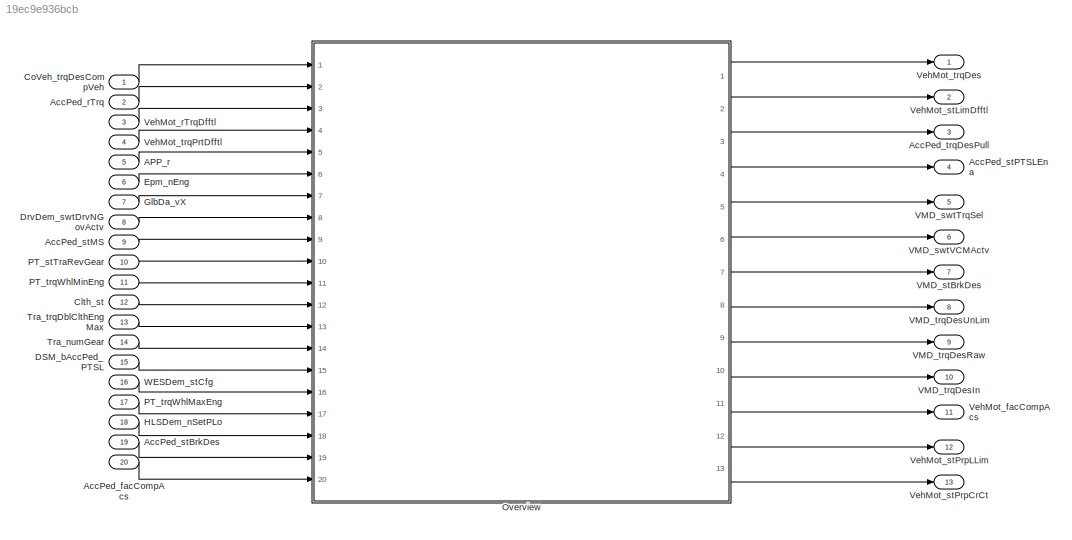
MODEL slx_19ec9e936bcb
KIND model
CONFIG AbsTol = auto
CONFIG EnableMultiTasking = off
CONFIG FixedStep = auto
CONFIG MaxStep = auto
CONFIG MinStep = auto
CONFIG RelTol = 1e-3
CONFIG SampleTimeConstraint = Unconstrained
CONFIG Solver = VariableStepAuto
CONFIG SolverName = VariableStepAuto
CONFIG StartTime = 0.0
CONFIG StopTime = 10.0
BLOCK [Inport] APP_r
  IconDisplay = Port number
  Port = 5
BLOCK [Inport] AccPed_facCompAcs
  IconDisplay = Port number
  Port = 20
BLOCK [Inport] AccPed_rTrq
  IconDisplay = Port number
  Port = 2
BLOCK [Inport] AccPed_stBrkDes
  IconDisplay = Port number
  Port = 19
BLOCK [Inport] AccPed_stMS
  IconDisplay = Port number
  Port = 9
BLOCK [Outport] AccPed_stPTSLEna
  IconDisplay = Port number
  Port = 4
BLOCK [Outport] AccPed_trqDesPull
  IconDisplay = Port number
  Port = 3
BLOCK [Inport] Clth_st
  IconDisplay = Port number
  Port = 12
BLOCK [Inport] CoVeh_trqDesCompVeh
  IconDisplay = Port number
BLOCK [Inport] DSM_bAccPed_PTSL
  IconDisplay = Port number
  Port = 15
BLOCK [Inport] DrvDem_swtDrvNGovActv
  IconDisplay = Port number
  Port = 8
BLOCK [Inport] Epm_nEng
  IconDisplay = Port number
  Port = 6
BLOCK [Inport] GlbDa_vX
  IconDisplay = Port number
  Port = 7
BLOCK [Inport] HLSDem_nSetPLo
  IconDisplay = Port number
  Port = 18
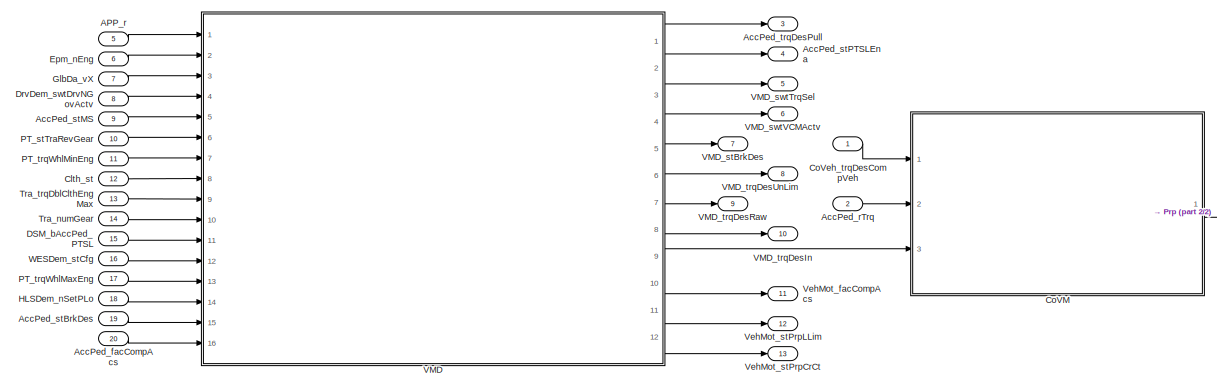
[diagram: Overview - part 1/2, center side, full height]
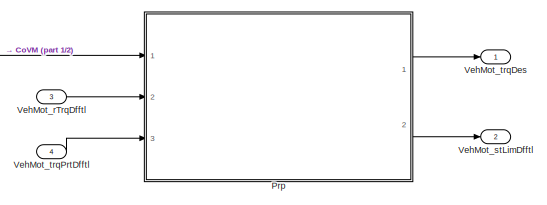
[diagram: Overview - part 2/2, bottom right region]
BLOCK [SubSystem] Overview
  Ports = [20, 13]
  RequestExecContextInheritance = off
BLOCK [Inport] Overview/APP_r
  IconDisplay = Port number
  Port = 5
BLOCK [Inport] Overview/AccPed_facCompAcs
  IconDisplay = Port number
  Port = 20
BLOCK [Inport] Overview/AccPed_rTrq
  IconDisplay = Port number
  Port = 2
BLOCK [Inport] Overview/AccPed_stBrkDes
  IconDisplay = Port number
  Port = 19
BLOCK [Inport] Overview/AccPed_stMS
  IconDisplay = Port number
  Port = 9
BLOCK [Outport] Overview/AccPed_stPTSLEna
  IconDisplay = Port number
  Port = 4
BLOCK [Outport] Overview/AccPed_trqDesPull
  IconDisplay = Port number
  Port = 3
BLOCK [Inport] Overview/Clth_st
  IconDisplay = Port number
  Port = 12
BLOCK [ModelReference] Overview/CoVM
  ModelNameDialog = CoVM
  ModelReferenceVersion = 1.2
  Ports = [3, 1]
BLOCK [Inport] Overview/CoVeh_trqDesCompVeh
  IconDisplay = Port number
BLOCK [Inport] Overview/DSM_bAccPed_PTSL
  IconDisplay = Port number
  Port = 15
BLOCK [Inport] Overview/DrvDem_swtDrvNGovActv
  IconDisplay = Port number
  Port = 8
BLOCK [Inport] Overview/Epm_nEng
  IconDisplay = Port number
  Port = 6
BLOCK [Inport] Overview/GlbDa_vX
  IconDisplay = Port number
  Port = 7
BLOCK [Inport] Overview/HLSDem_nSetPLo
  IconDisplay = Port number
  Port = 18
BLOCK [Inport] Overview/PT_stTraRevGear
  IconDisplay = Port number
  Port = 10
BLOCK [Inport] Overview/PT_trqWhlMaxEng
  IconDisplay = Port number
  Port = 17
BLOCK [Inport] Overview/PT_trqWhlMinEng
  IconDisplay = Port number
  Port = 11
BLOCK [ModelReference] Overview/Prp
  ModelNameDialog = Prp
  ModelReferenceVersion = 1.2
  Ports = [3, 2]
BLOCK [Inport] Overview/Tra_numGear
  IconDisplay = Port number
  Port = 14
BLOCK [Inport] Overview/Tra_trqDblClthEngMax
  IconDisplay = Port number
  Port = 13
BLOCK [ModelReference] Overview/VMD
  ModelNameDialog = VMD
  ModelReferenceVersion = 1.5
  Ports = [16, 12]
BLOCK [Outport] Overview/VMD_stBrkDes
  IconDisplay = Port number
  Port = 7
BLOCK [Outport] Overview/VMD_swtTrqSel
  IconDisplay = Port number
  Port = 5
BLOCK [Outport] Overview/VMD_swtVCMActv
  IconDisplay = Port number
  Port = 6
BLOCK [Outport] Overview/VMD_trqDesIn
  IconDisplay = Port number
  Port = 10
BLOCK [Outport] Overview/VMD_trqDesRaw
  IconDisplay = Port number
  Port = 9
BLOCK [Outport] Overview/VMD_trqDesUnLim
  IconDisplay = Port number
  Port = 8
BLOCK [Outport] Overview/VehMot_facCompAcs
  IconDisplay = Port number
  Port = 11
BLOCK [Inport] Overview/VehMot_rTrqDfftl
  IconDisplay = Port number
  Port = 3
BLOCK [Outport] Overview/VehMot_stLimDfftl
  IconDisplay = Port number
  Port = 2
BLOCK [Outport] Overview/VehMot_stPrpCrCt
  IconDisplay = Port number
  Port = 13
BLOCK [Outport] Overview/VehMot_stPrpLLim
  IconDisplay = Port number
  Port = 12
BLOCK [Outport] Overview/VehMot_trqDes
  IconDisplay = Port number
BLOCK [Inport] Overview/VehMot_trqPrtDfftl
  IconDisplay = Port number
  Port = 4
BLOCK [Inport] Overview/WESDem_stCfg
  IconDisplay = Port number
  Port = 16
BLOCK [Inport] PT_stTraRevGear
  IconDisplay = Port number
  Port = 10
BLOCK [Inport] PT_trqWhlMaxEng
  IconDisplay = Port number
  Port = 17
BLOCK [Inport] PT_trqWhlMinEng
  IconDisplay = Port number
  Port = 11
BLOCK [Inport] Tra_numGear
  IconDisplay = Port number
  Port = 14
BLOCK [Inport] Tra_trqDblClthEngMax
  IconDisplay = Port number
  Port = 13
BLOCK [Outport] VMD_stBrkDes
  IconDisplay = Port number
  Port = 7
BLOCK [Outport] VMD_swtTrqSel
  IconDisplay = Port number
  Port = 5
BLOCK [Outport] VMD_swtVCMActv
  IconDisplay = Port number
  Port = 6
BLOCK [Outport] VMD_trqDesIn
  IconDisplay = Port number
  Port = 10
BLOCK [Outport] VMD_trqDesRaw
  IconDisplay = Port number
  Port = 9
BLOCK [Outport] VMD_trqDesUnLim
  IconDisplay = Port number
  Port = 8
BLOCK [Outport] VehMot_facCompAcs
  IconDisplay = Port number
  Port = 11
BLOCK [Inport] VehMot_rTrqDfftl
  IconDisplay = Port number
  Port = 3
BLOCK [Outport] VehMot_stLimDfftl
  IconDisplay = Port number
  Port = 2
BLOCK [Outport] VehMot_stPrpCrCt
  IconDisplay = Port number
  Port = 13
BLOCK [Outport] VehMot_stPrpLLim
  IconDisplay = Port number
  Port = 12
BLOCK [Outport] VehMot_trqDes
  IconDisplay = Port number
BLOCK [Inport] VehMot_trqPrtDfftl
  IconDisplay = Port number
  Port = 4
BLOCK [Inport] WESDem_stCfg
  IconDisplay = Port number
  Port = 16
LINE APP_r:1 -> Overview:5
LINE AccPed_facCompAcs:1 -> Overview:20
LINE AccPed_rTrq:1 -> Overview:2
LINE AccPed_stBrkDes:1 -> Overview:19
LINE AccPed_stMS:1 -> Overview:9
LINE Clth_st:1 -> Overview:12
LINE CoVeh_trqDesCompVeh:1 -> Overview:1
LINE DSM_bAccPed_PTSL:1 -> Overview:15
LINE DrvDem_swtDrvNGovActv:1 -> Overview:8
LINE Epm_nEng:1 -> Overview:6
LINE GlbDa_vX:1 -> Overview:7
LINE HLSDem_nSetPLo:1 -> Overview:18
LINE Overview/APP_r:1 -> Overview/VMD:1
LINE Overview/AccPed_facCompAcs:1 -> Overview/VMD:16
LINE Overview/AccPed_rTrq:1 -> Overview/CoVM:2
LINE Overview/AccPed_stBrkDes:1 -> Overview/VMD:15
LINE Overview/AccPed_stMS:1 -> Overview/VMD:5
LINE Overview/Clth_st:1 -> Overview/VMD:8
LINE Overview/CoVM:1 -> Overview/Prp:1
LINE Overview/CoVeh_trqDesCompVeh:1 -> Overview/CoVM:1
LINE Overview/DSM_bAccPed_PTSL:1 -> Overview/VMD:11
LINE Overview/DrvDem_swtDrvNGovActv:1 -> Overview/VMD:4
LINE Overview/Epm_nEng:1 -> Overview/VMD:2
LINE Overview/GlbDa_vX:1 -> Overview/VMD:3
LINE Overview/HLSDem_nSetPLo:1 -> Overview/VMD:14
LINE Overview/PT_stTraRevGear:1 -> Overview/VMD:6
LINE Overview/PT_trqWhlMaxEng:1 -> Overview/VMD:13
LINE Overview/PT_trqWhlMinEng:1 -> Overview/VMD:7
LINE Overview/Prp:1 -> Overview/VehMot_trqDes:1
LINE Overview/Prp:2 -> Overview/VehMot_stLimDfftl:1
LINE Overview/Tra_numGear:1 -> Overview/VMD:10
LINE Overview/Tra_trqDblClthEngMax:1 -> Overview/VMD:9
LINE Overview/VMD:1 -> Overview/AccPed_trqDesPull:1
LINE Overview/VMD:10 -> Overview/VehMot_facCompAcs:1
LINE Overview/VMD:11 -> Overview/VehMot_stPrpLLim:1
LINE Overview/VMD:12 -> Overview/VehMot_stPrpCrCt:1
LINE Overview/VMD:2 -> Overview/AccPed_stPTSLEna:1
LINE Overview/VMD:3 -> Overview/VMD_swtTrqSel:1
LINE Overview/VMD:4 -> Overview/VMD_swtVCMActv:1
LINE Overview/VMD:5 -> Overview/VMD_stBrkDes:1
LINE Overview/VMD:6 -> Overview/VMD_trqDesUnLim:1
LINE Overview/VMD:7 -> Overview/VMD_trqDesRaw:1
LINE Overview/VMD:8 -> Overview/VMD_trqDesIn:1
LINE Overview/VMD:9 -> Overview/CoVM:3
LINE Overview/VehMot_rTrqDfftl:1 -> Overview/Prp:2
LINE Overview/VehMot_trqPrtDfftl:1 -> Overview/Prp:3
LINE Overview/WESDem_stCfg:1 -> Overview/VMD:12
LINE Overview:1 -> VehMot_trqDes:1
LINE Overview:10 -> VMD_trqDesIn:1
LINE Overview:11 -> VehMot_facCompAcs:1
LINE Overview:12 -> VehMot_stPrpLLim:1
LINE Overview:13 -> VehMot_stPrpCrCt:1
LINE Overview:2 -> VehMot_stLimDfftl:1
LINE Overview:3 -> AccPed_trqDesPull:1
LINE Overview:4 -> AccPed_stPTSLEna:1
LINE Overview:5 -> VMD_swtTrqSel:1
LINE Overview:6 -> VMD_swtVCMActv:1
LINE Overview:7 -> VMD_stBrkDes:1
LINE Overview:8 -> VMD_trqDesUnLim:1
LINE Overview:9 -> VMD_trqDesRaw:1
LINE PT_stTraRevGear:1 -> Overview:10
LINE PT_trqWhlMaxEng:1 -> Overview:17
LINE PT_trqWhlMinEng:1 -> Overview:11
LINE Tra_numGear:1 -> Overview:14
LINE Tra_trqDblClthEngMax:1 -> Overview:13
LINE VehMot_rTrqDfftl:1 -> Overview:3
LINE VehMot_trqPrtDfftl:1 -> Overview:4
LINE WESDem_stCfg:1 -> Overview:16
